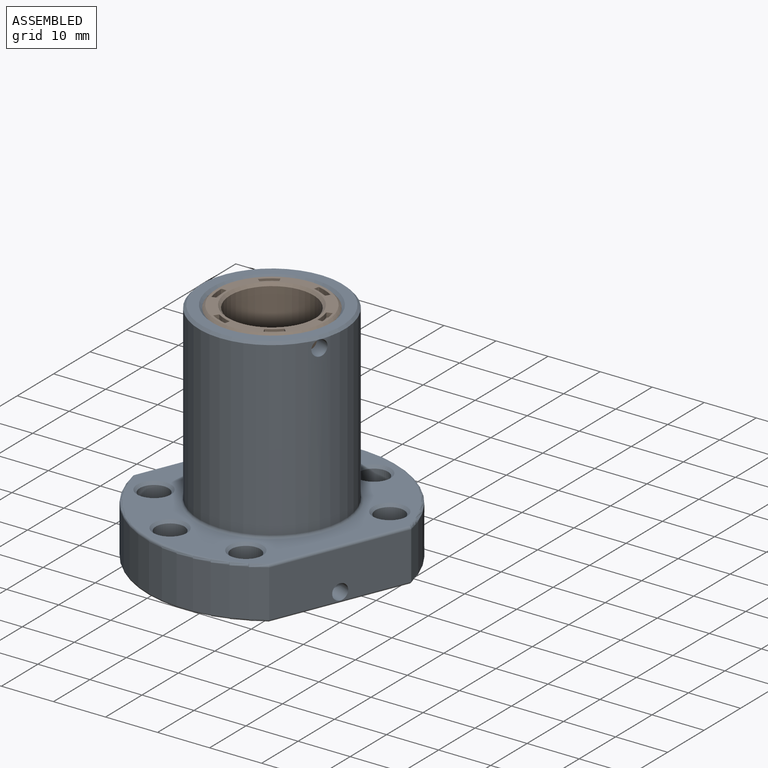
[diagram: assembled view]
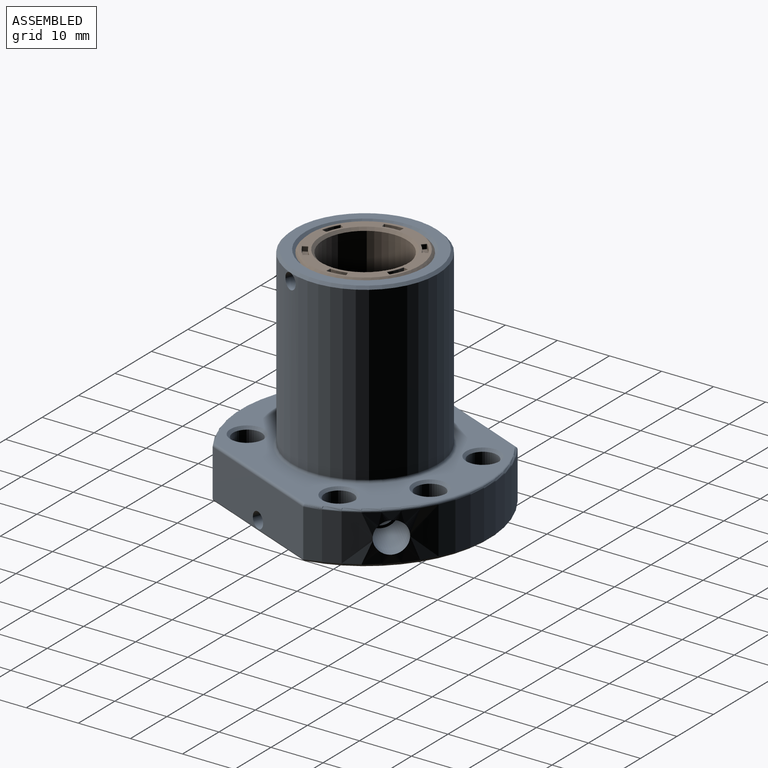
[diagram: assembled view, second angle]
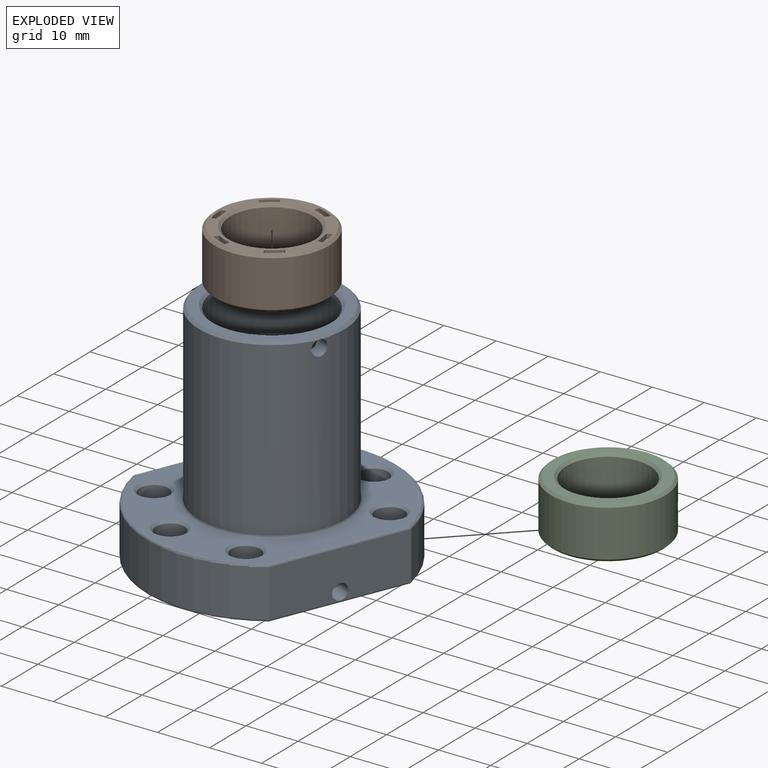
[diagram: exploded view]
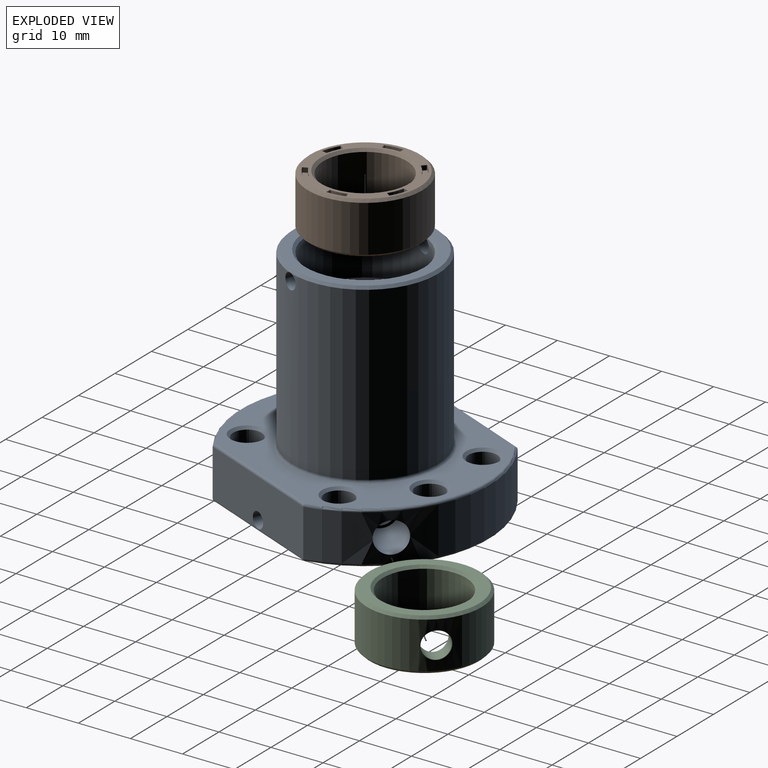
[diagram: exploded view, second angle]
ASSEMBLY  parts=3 mates=4
PART A: 53 faces, bbox 52.7x44x44.7 mm
  f0: plane 22.69x22.69mm, normal (0,0,-1), area 109.9mm2, adj f4,f11,f52
  f1: cylinder r=8mm len=23mm, axis (0,0,1), area 283.6mm2, adj f3,f4,f52
  f2: plane 22.7x22.7mm, normal (0,0,1), area 109.9mm2, adj f3,f12,f52
  f3: cone r=8mm half-angle=45deg, axis (0,0,1), area 9.3mm2, adj f1,f2,f52
  f4: cone r=8.5mm half-angle=45deg, axis (0,0,-1), area 9.3mm2, adj f0,f1,f52
  f5: cylinder r=2.5mm len=5.88mm, axis (0.92,0.38,0), area 51.6mm2, adj f12,f37
  f6: cylinder r=24mm len=40mm, axis (0,0,1), area 397.2mm2, adj f14,f15,f38,f41,f47
  f7: cylinder r=24mm len=40mm, axis (0,0,1), area 425.6mm2, adj f14,f15,f42,f44
  f8: plane 47x39mm, normal (0,0,-1), area 732.9mm2, adj f23,f24,f25,f26,f27,f28,f39,f40
  f9: cylinder r=14mm len=33mm, axis (0,0,1), area 2888.6mm2, adj f30,f39,f50,f51
  f10: plane 27x27mm, normal (0,0,-1), area 157.1mm2, adj f29,f30
  f11: cylinder r=11mm len=22mm, axis (0,0,1), area 642.5mm2, adj f0,f29,f50,f51
  f12: cylinder r=11mm len=22mm, axis (0,0,1), area 622.7mm2, adj f2,f5,f22,f48,f49
  f13: plane 47x39mm, normal (0,0,1), area 977.9mm2, adj f22,f31,f32,f33,f34,f35,f36,f44
  f14: plane 26.53x9mm, normal (0,-1,0), area 231.7mm2, adj f6,f7,f43,f45,f49
  f15: plane 26.53x9mm, normal (0,1,0), area 231.7mm2, adj f6,f7,f40,f46,f48
  f16: cylinder r=2.75mm len=9mm, axis (0,0,1), area 155.5mm2, adj f25,f31
  f17: cylinder r=2.75mm len=9mm, axis (0,0,1), area 155.5mm2, adj f26,f32
  f18: cylinder r=2.75mm len=9mm, axis (0,0,1), area 155.5mm2, adj f24,f36
  f19: cylinder r=2.75mm len=9mm, axis (0,0,1), area 155.5mm2, adj f27,f33
  f20: cylinder r=2.75mm len=9mm, axis (0,0,1), area 155.5mm2, adj f28,f34
  f21: cylinder r=2.75mm len=9mm, axis (0,0,1), area 155.5mm2, adj f23,f35
  f22: cone r=11mm half-angle=45deg, axis (0,0,1), area 50mm2, adj f12,f13
  f23: cone r=3.25mm half-angle=45deg, axis (0,0,-1), area 13.3mm2, adj f8,f21
  f24: cone r=3.25mm half-angle=45deg, axis (0,0,-1), area 13.3mm2, adj f8,f18
  f25: cone r=3.25mm half-angle=45deg, axis (0,0,-1), area 13.3mm2, adj f8,f16
  f26: cone r=3.25mm half-angle=45deg, axis (0,0,-1), area 13.3mm2, adj f8,f17
  f27: cone r=3.25mm half-angle=45deg, axis (0,0,-1), area 13.3mm2, adj f8,f19
  f28: cone r=3.25mm half-angle=45deg, axis (0,0,-1), area 13.3mm2, adj f8,f20
  f29: cone r=11.5mm half-angle=45deg, axis (0,0,-1), area 50mm2, adj f10,f11
  f30: cone r=14mm half-angle=45deg, axis (0,0,1), area 61.1mm2, adj f9,f10
  f31: cone r=2.75mm half-angle=45deg, axis (0,0,1), area 13.3mm2, adj f13,f16
  f32: cone r=2.75mm half-angle=45deg, axis (0,0,1), area 13.3mm2, adj f13,f17
  f33: cone r=2.75mm half-angle=45deg, axis (0,0,1), area 13.3mm2, adj f13,f19
  f34: cone r=2.75mm half-angle=45deg, axis (0,0,1), area 13.3mm2, adj f13,f20
  f35: cone r=2.75mm half-angle=45deg, axis (0,0,1), area 13.3mm2, adj f13,f21
  f36: cone r=2.75mm half-angle=45deg, axis (0,0,1), area 13.3mm2, adj f13,f18
  f37: plane 6x5.54mm, normal (0.92,0.38,0), area 8.6mm2, adj f5,f38
  f38: cylinder r=3mm len=11.36mm, axis (0.92,0.38,0), area 184.9mm2, adj f6,f37
  f39: torus R=14.5mm, axis (0,0,-1), area 70mm2, adj f8,f9
  f40: cylinder r=0.5mm len=26.53mm, axis (-1,0,0), area 20.7mm2, adj f8,f15,f41,f42
  f41: torus R=23.5mm, axis (0,0,-1), area 36.7mm2, adj f6,f8,f40,f43
  f42: torus R=23.5mm, axis (0,0,-1), area 36.7mm2, adj f7,f8,f40,f43
  f43: cylinder r=0.5mm len=26.53mm, axis (1,0,0), area 20.7mm2, adj f8,f14,f41,f42
  f44: torus R=23.5mm, axis (0,0,1), area 36.7mm2, adj f7,f13,f45,f46
  f45: cylinder r=0.5mm len=26.53mm, axis (1,0,0), area 20.7mm2, adj f13,f14,f44,f47
  f46: cylinder r=0.5mm len=26.53mm, axis (-1,0,0), area 20.7mm2, adj f13,f15,f44,f47
  f47: torus R=23.5mm, axis (0,0,1), area 36.7mm2, adj f6,f13,f45,f46
  f48: cylinder r=1.5mm len=9mm, axis (0,-1,0), area 84.8mm2, adj f12,f15
  f49: cylinder r=1.5mm len=9mm, axis (0,-1,0), area 84.8mm2, adj f12,f14
  f50: cylinder r=1.5mm len=3mm, axis (0,-1,0), area 28.3mm2, adj f9,f11
  f51: cylinder r=1.5mm len=3mm, axis (0,-1,0), area 28.3mm2, adj f9,f11
  f52: bspline ~32.75x19.8mm, area 1655.8mm2, adj f0,f1,f2,f3,f4
PART B: 158 faces, bbox 22x22x10 mm
  f0: plane 21x21mm, normal (0,0,1), area 94.3mm2, adj f6,f7,f15,f19,f20,f24,f25,f28
  f1: plane 21x21mm, normal (0,0,-1), area 119.4mm2, adj f4,f5
  f2: cylinder r=11mm len=22mm, axis (0,0,-1), area 622mm2, adj f5,f6
  f3: cylinder r=8mm len=16mm, axis (0,0,-1), area 452.4mm2, adj f4,f7
  f4: cone r=8.5mm half-angle=45deg, axis (0,0,-1), area 36.7mm2, adj f1,f3
  f5: cone r=11mm half-angle=45deg, axis (0,0,1), area 47.8mm2, adj f1,f2
  f6: cone r=10.5mm half-angle=45deg, axis (0,0,-1), area 47.8mm2, adj f0,f2
  f7: cone r=8mm half-angle=45deg, axis (0,0,1), area 36.7mm2, adj f0,f3
  f8: cylinder r=9mm len=2.93mm, axis (0,0,1), area 2.4mm2, adj f21,f26,f29,f32
  f9: plane 0.8x0.79mm, normal (0.98,0.17,0), area 0.6mm2, adj f13,f16,f20,f21
  f10: cylinder r=10mm len=3.27mm, axis (0,0,1), area 2.6mm2, adj f13,f17,f18,f19
  f11: plane 0.8x0.79mm, normal (-0.98,0.17,0), area 0.6mm2, adj f18,f27,f28,f32
  f12: plane 3.24x0.92mm, normal (0,0,1), area 2.5mm2, adj f16,f17,f26,f27
  f13: cylinder r=0.1mm len=0.8mm, axis (0,0,1), area 0.1mm2, adj f9,f10,f14,f15
  f14: sphere r=0.1mm, area 0mm2, adj f13,f16,f17
  f15: torus R=0.2mm, axis (0,0,1), area 0mm2, adj f0,f13,f19,f20
  f16: cylinder r=0.1mm len=0.81mm, axis (0.17,-0.98,0), area 0.1mm2, adj f9,f12,f14,f22
  f17: torus R=9.9mm, axis (0,0,1), area 0.5mm2, adj f10,f12,f14,f23
  f18: cylinder r=0.1mm len=0.8mm, axis (0,0,1), area 0.1mm2, adj f10,f11,f23,f24
  f19: torus R=10.1mm, axis (0,0,1), area 0.5mm2, adj f0,f10,f15,f24
  f20: cylinder r=0.1mm len=0.81mm, axis (-0.17,0.98,0), area 0.1mm2, adj f0,f9,f15,f25
  f21: cylinder r=0.1mm len=0.8mm, axis (0,0,1), area 0.1mm2, adj f8,f9,f22,f25
  f22: sphere r=0.1mm, area 0mm2, adj f16,f21,f26
  f23: sphere r=0.1mm, area 0mm2, adj f17,f18,f27
  f24: torus R=0.2mm, axis (0,0,1), area 0mm2, adj f0,f18,f19,f28
  f25: torus R=0.2mm, axis (0,0,1), area 0mm2, adj f0,f20,f21,f29
  f26: torus R=9.1mm, axis (0,0,1), area 0.5mm2, adj f8,f12,f22,f30
  f27: cylinder r=0.1mm len=0.81mm, axis (0.17,0.98,0), area 0.1mm2, adj f11,f12,f23,f30
  f28: cylinder r=0.1mm len=0.81mm, axis (-0.17,-0.98,0), area 0.1mm2, adj f0,f11,f24,f31
  f29: torus R=8.9mm, axis (0,0,1), area 0.5mm2, adj f0,f8,f25,f31
  f30: sphere r=0.1mm, area 0mm2, adj f26,f27,f32
  f31: torus R=0.2mm, axis (0,0,1), area 0mm2, adj f0,f28,f29,f32
  f32: cylinder r=0.1mm len=0.8mm, axis (0,0,1), area 0.1mm2, adj f8,f11,f30,f31
  f33: plane 0.8x0.75mm, normal (-0.34,0.94,0), area 0.6mm2, adj f47,f48,f50,f57
  f34: cylinder r=9mm len=2.54mm, axis (0,0,1), area 2.4mm2, adj f52,f53,f55,f57
  f35: plane 0.8x0.61mm, normal (0.64,-0.77,0), area 0.6mm2, adj f40,f42,f43,f53
  f36: cylinder r=10mm len=2.84mm, axis (0,0,1), area 2.6mm2, adj f41,f42,f45,f48
  f37: sphere r=0.1mm, area 0mm2, adj f40,f41,f42
  f38: plane 3.08x2.23mm, normal (0,0,1), area 2.5mm2, adj f40,f41,f50,f52
  f39: sphere r=0.1mm, area 0mm2, adj f40,f52,f53
  f40: cylinder r=0.1mm len=0.68mm, axis (-0.77,-0.64,0), area 0.1mm2, adj f35,f37,f38,f39
  f41: torus R=9.9mm, axis (0,0,1), area 0.5mm2, adj f36,f37,f38,f49
  f42: cylinder r=0.1mm len=0.8mm, axis (0,0,1), area 0.1mm2, adj f35,f36,f37,f44
  f43: cylinder r=0.1mm len=0.68mm, axis (0.77,0.64,0), area 0.1mm2, adj f0,f35,f44,f54
  f44: torus R=0.2mm, axis (0,0,1), area 0mm2, adj f0,f42,f43,f45
  f45: torus R=10.1mm, axis (0,0,1), area 0.5mm2, adj f0,f36,f44,f46
  f46: torus R=0.2mm, axis (0,0,1), area 0mm2, adj f0,f45,f47,f48
  f47: cylinder r=0.1mm len=0.79mm, axis (-0.94,-0.34,0), area 0.1mm2, adj f0,f33,f46,f56
  f48: cylinder r=0.1mm len=0.8mm, axis (0,0,1), area 0.1mm2, adj f33,f36,f46,f49
  f49: sphere r=0.1mm, area 0mm2, adj f41,f48,f50
  f50: cylinder r=0.1mm len=0.79mm, axis (0.94,0.34,0), area 0.1mm2, adj f33,f38,f49,f51
  f51: sphere r=0.1mm, area 0mm2, adj f50,f52,f57
  f52: torus R=9.1mm, axis (0,0,1), area 0.5mm2, adj f34,f38,f39,f51
  f53: cylinder r=0.1mm len=0.8mm, axis (0,0,1), area 0.1mm2, adj f34,f35,f39,f54
  f54: torus R=0.2mm, axis (0,0,1), area 0mm2, adj f0,f43,f53,f55
  f55: torus R=8.9mm, axis (0,0,1), area 0.5mm2, adj f0,f34,f54,f56
  f56: torus R=0.2mm, axis (0,0,1), area 0mm2, adj f0,f47,f55,f57
  f57: cylinder r=0.1mm len=0.8mm, axis (0,0,1), area 0.1mm2, adj f33,f34,f51,f56
  f58: plane 0.8x0.61mm, normal (0.64,0.77,0), area 0.6mm2, adj f72,f73,f75,f82
  f59: cylinder r=9mm len=2.54mm, axis (0,0,1), area 2.4mm2, adj f77,f78,f80,f82
  f60: plane 0.8x0.75mm, normal (-0.34,-0.94,0), area 0.6mm2, adj f65,f67,f68,f78
  f61: cylinder r=10mm len=2.84mm, axis (0,0,1), area 2.6mm2, adj f66,f67,f70,f73
  f62: sphere r=0.1mm, area 0mm2, adj f65,f66,f67
  f63: plane 3.08x2.23mm, normal (0,0,1), area 2.5mm2, adj f65,f66,f75,f77
  f64: sphere r=0.1mm, area 0mm2, adj f65,f77,f78
  f65: cylinder r=0.1mm len=0.79mm, axis (-0.94,0.34,0), area 0.1mm2, adj f60,f62,f63,f64
  f66: torus R=9.9mm, axis (0,0,1), area 0.5mm2, adj f61,f62,f63,f74
  f67: cylinder r=0.1mm len=0.8mm, axis (0,0,1), area 0.1mm2, adj f60,f61,f62,f69
  f68: cylinder r=0.1mm len=0.79mm, axis (0.94,-0.34,0), area 0.1mm2, adj f0,f60,f69,f79
  f69: torus R=0.2mm, axis (0,0,1), area 0mm2, adj f0,f67,f68,f70
  f70: torus R=10.1mm, axis (0,0,1), area 0.5mm2, adj f0,f61,f69,f71
  f71: torus R=0.2mm, axis (0,0,1), area 0mm2, adj f0,f70,f72,f73
  f72: cylinder r=0.1mm len=0.68mm, axis (-0.77,0.64,0), area 0.1mm2, adj f0,f58,f71,f81
  f73: cylinder r=0.1mm len=0.8mm, axis (0,0,1), area 0.1mm2, adj f58,f61,f71,f74
  f74: sphere r=0.1mm, area 0mm2, adj f66,f73,f75
  f75: cylinder r=0.1mm len=0.68mm, axis (0.77,-0.64,0), area 0.1mm2, adj f58,f63,f74,f76
  f76: sphere r=0.1mm, area 0mm2, adj f75,f77,f82
  f77: torus R=9.1mm, axis (0,0,1), area 0.5mm2, adj f59,f63,f64,f76
  f78: cylinder r=0.1mm len=0.8mm, axis (0,0,1), area 0.1mm2, adj f59,f60,f64,f79
  f79: torus R=0.2mm, axis (0,0,1), area 0mm2, adj f0,f68,f78,f80
  f80: torus R=8.9mm, axis (0,0,1), area 0.5mm2, adj f0,f59,f79,f81
  f81: torus R=0.2mm, axis (0,0,1), area 0mm2, adj f0,f72,f80,f82
  f82: cylinder r=0.1mm len=0.8mm, axis (0,0,1), area 0.1mm2, adj f58,f59,f76,f81
  f83: plane 0.8x0.79mm, normal (0.98,-0.17,0), area 0.6mm2, adj f97,f98,f100,f107
  f84: cylinder r=9mm len=2.93mm, axis (0,0,1), area 2.4mm2, adj f102,f103,f105,f107
  f85: plane 0.8x0.79mm, normal (-0.98,-0.17,0), area 0.6mm2, adj f90,f92,f93,f103
  f86: cylinder r=10mm len=3.27mm, axis (0,0,1), area 2.6mm2, adj f91,f92,f95,f98
  f87: sphere r=0.1mm, area 0mm2, adj f90,f91,f92
  f88: plane 3.24x0.92mm, normal (0,0,1), area 2.5mm2, adj f90,f91,f100,f102
  f89: sphere r=0.1mm, area 0mm2, adj f90,f102,f103
  f90: cylinder r=0.1mm len=0.81mm, axis (-0.17,0.98,0), area 0.1mm2, adj f85,f87,f88,f89
  f91: torus R=9.9mm, axis (0,0,1), area 0.5mm2, adj f86,f87,f88,f99
  f92: cylinder r=0.1mm len=0.8mm, axis (0,0,1), area 0.1mm2, adj f85,f86,f87,f94
  f93: cylinder r=0.1mm len=0.81mm, axis (0.17,-0.98,0), area 0.1mm2, adj f0,f85,f94,f104
  f94: torus R=0.2mm, axis (0,0,1), area 0mm2, adj f0,f92,f93,f95
  f95: torus R=10.1mm, axis (0,0,1), area 0.5mm2, adj f0,f86,f94,f96
  f96: torus R=0.2mm, axis (0,0,1), area 0mm2, adj f0,f95,f97,f98
  f97: cylinder r=0.1mm len=0.81mm, axis (0.17,0.98,0), area 0.1mm2, adj f0,f83,f96,f106
  f98: cylinder r=0.1mm len=0.8mm, axis (0,0,1), area 0.1mm2, adj f83,f86,f96,f99
  f99: sphere r=0.1mm, area 0mm2, adj f91,f98,f100
  f100: cylinder r=0.1mm len=0.81mm, axis (-0.17,-0.98,0), area 0.1mm2, adj f83,f88,f99,f101
  f101: sphere r=0.1mm, area 0mm2, adj f100,f102,f107
  f102: torus R=9.1mm, axis (0,0,1), area 0.5mm2, adj f84,f88,f89,f101
  f103: cylinder r=0.1mm len=0.8mm, axis (0,0,1), area 0.1mm2, adj f84,f85,f89,f104
  f104: torus R=0.2mm, axis (0,0,1), area 0mm2, adj f0,f93,f103,f105
  f105: torus R=8.9mm, axis (0,0,1), area 0.5mm2, adj f0,f84,f104,f106
  f106: torus R=0.2mm, axis (0,0,1), area 0mm2, adj f0,f97,f105,f107
  f107: cylinder r=0.1mm len=0.8mm, axis (0,0,1), area 0.1mm2, adj f83,f84,f101,f106
  f108: plane 0.8x0.75mm, normal (0.34,-0.94,0), area 0.6mm2, adj f122,f123,f125,f132
  f109: cylinder r=9mm len=2.54mm, axis (0,0,1), area 2.4mm2, adj f127,f128,f130,f132
  f110: plane 0.8x0.61mm, normal (-0.64,0.77,0), area 0.6mm2, adj f115,f117,f118,f128
  f111: cylinder r=10mm len=2.84mm, axis (0,0,1), area 2.6mm2, adj f116,f117,f120,f123
  f112: sphere r=0.1mm, area 0mm2, adj f115,f116,f117
  f113: plane 3.08x2.23mm, normal (0,0,1), area 2.5mm2, adj f115,f116,f125,f127
  f114: sphere r=0.1mm, area 0mm2, adj f115,f127,f128
  f115: cylinder r=0.1mm len=0.68mm, axis (0.77,0.64,0), area 0.1mm2, adj f110,f112,f113,f114
  f116: torus R=9.9mm, axis (0,0,1), area 0.5mm2, adj f111,f112,f113,f124
  f117: cylinder r=0.1mm len=0.8mm, axis (0,0,1), area 0.1mm2, adj f110,f111,f112,f119
  f118: cylinder r=0.1mm len=0.68mm, axis (-0.77,-0.64,0), area 0.1mm2, adj f0,f110,f119,f129
  f119: torus R=0.2mm, axis (0,0,1), area 0mm2, adj f0,f117,f118,f120
  f120: torus R=10.1mm, axis (0,0,1), area 0.5mm2, adj f0,f111,f119,f121
  f121: torus R=0.2mm, axis (0,0,1), area 0mm2, adj f0,f120,f122,f123
  f122: cylinder r=0.1mm len=0.79mm, axis (0.94,0.34,0), area 0.1mm2, adj f0,f108,f121,f131
  f123: cylinder r=0.1mm len=0.8mm, axis (0,0,1), area 0.1mm2, adj f108,f111,f121,f124
  f124: sphere r=0.1mm, area 0mm2, adj f116,f123,f125
  f125: cylinder r=0.1mm len=0.79mm, axis (-0.94,-0.34,0), area 0.1mm2, adj f108,f113,f124,f126
  f126: sphere r=0.1mm, area 0mm2, adj f125,f127,f132
  f127: torus R=9.1mm, axis (0,0,1), area 0.5mm2, adj f109,f113,f114,f126
  f128: cylinder r=0.1mm len=0.8mm, axis (0,0,1), area 0.1mm2, adj f109,f110,f114,f129
  f129: torus R=0.2mm, axis (0,0,1), area 0mm2, adj f0,f118,f128,f130
  f130: torus R=8.9mm, axis (0,0,1), area 0.5mm2, adj f0,f109,f129,f131
  f131: torus R=0.2mm, axis (0,0,1), area 0mm2, adj f0,f122,f130,f132
  f132: cylinder r=0.1mm len=0.8mm, axis (0,0,1), area 0.1mm2, adj f108,f109,f126,f131
  f133: plane 0.8x0.61mm, normal (-0.64,-0.77,0), area 0.6mm2, adj f147,f148,f150,f157
  f134: cylinder r=9mm len=2.54mm, axis (0,0,1), area 2.4mm2, adj f152,f153,f155,f157
  f135: plane 0.8x0.75mm, normal (0.34,0.94,0), area 0.6mm2, adj f140,f142,f143,f153
  f136: cylinder r=10mm len=2.84mm, axis (0,0,1), area 2.6mm2, adj f141,f142,f145,f148
  f137: sphere r=0.1mm, area 0mm2, adj f140,f141,f142
  f138: plane 3.08x2.23mm, normal (0,0,1), area 2.5mm2, adj f140,f141,f150,f152
  f139: sphere r=0.1mm, area 0mm2, adj f140,f152,f153
  f140: cylinder r=0.1mm len=0.79mm, axis (0.94,-0.34,0), area 0.1mm2, adj f135,f137,f138,f139
  f141: torus R=9.9mm, axis (0,0,1), area 0.5mm2, adj f136,f137,f138,f149
  f142: cylinder r=0.1mm len=0.8mm, axis (0,0,1), area 0.1mm2, adj f135,f136,f137,f144
  f143: cylinder r=0.1mm len=0.79mm, axis (-0.94,0.34,0), area 0.1mm2, adj f0,f135,f144,f154
  f144: torus R=0.2mm, axis (0,0,1), area 0mm2, adj f0,f142,f143,f145
  f145: torus R=10.1mm, axis (0,0,1), area 0.5mm2, adj f0,f136,f144,f146
  f146: torus R=0.2mm, axis (0,0,1), area 0mm2, adj f0,f145,f147,f148
  f147: cylinder r=0.1mm len=0.68mm, axis (0.77,-0.64,0), area 0.1mm2, adj f0,f133,f146,f156
  f148: cylinder r=0.1mm len=0.8mm, axis (0,0,1), area 0.1mm2, adj f133,f136,f146,f149
  f149: sphere r=0.1mm, area 0mm2, adj f141,f148,f150
  f150: cylinder r=0.1mm len=0.68mm, axis (-0.77,0.64,0), area 0.1mm2, adj f133,f138,f149,f151
  f151: sphere r=0.1mm, area 0mm2, adj f150,f152,f157
  f152: torus R=9.1mm, axis (0,0,1), area 0.5mm2, adj f134,f138,f139,f151
  f153: cylinder r=0.1mm len=0.8mm, axis (0,0,1), area 0.1mm2, adj f134,f135,f139,f154
  f154: torus R=0.2mm, axis (0,0,1), area 0mm2, adj f0,f143,f153,f155
  f155: torus R=8.9mm, axis (0,0,1), area 0.5mm2, adj f0,f134,f154,f156
  f156: torus R=0.2mm, axis (0,0,1), area 0mm2, adj f0,f147,f155,f157
  f157: cylinder r=0.1mm len=0.8mm, axis (0,0,1), area 0.1mm2, adj f133,f134,f151,f156
PART C: 161 faces, bbox 22x22x10 mm
  f0: plane 21x21mm, normal (0,0,1), area 94.3mm2, adj f6,f7,f15,f19,f20,f24,f25,f28
  f1: plane 21x21mm, normal (0,0,-1), area 119.4mm2, adj f4,f5
  f2: cylinder r=11mm len=22mm, axis (0,0,-1), area 600.5mm2, adj f5,f6,f160
  f3: cylinder r=8mm len=16mm, axis (0,0,-1), area 431.2mm2, adj f4,f7,f159
  f4: cone r=8.5mm half-angle=45deg, axis (0,0,-1), area 36.7mm2, adj f1,f3
  f5: cone r=11mm half-angle=45deg, axis (0,0,1), area 47.8mm2, adj f1,f2
  f6: cone r=10.5mm half-angle=45deg, axis (0,0,-1), area 47.8mm2, adj f0,f2
  f7: cone r=8mm half-angle=45deg, axis (0,0,1), area 36.7mm2, adj f0,f3
  f8: cylinder r=10mm len=3.27mm, axis (0,0,1), area 2.6mm2, adj f18,f27,f28,f32
  f9: plane 0.8x0.79mm, normal (-0.98,0.17,0), area 0.6mm2, adj f21,f26,f29,f32
  f10: cylinder r=9mm len=2.93mm, axis (0,0,1), area 2.4mm2, adj f13,f16,f20,f21
  f11: plane 0.8x0.79mm, normal (0.98,0.17,0), area 0.6mm2, adj f13,f17,f18,f19
  f12: plane 3.24x0.92mm, normal (0,0,1), area 2.5mm2, adj f16,f17,f26,f27
  f13: cylinder r=0.1mm len=0.8mm, axis (0,0,1), area 0.1mm2, adj f10,f11,f14,f15
  f14: sphere r=0.1mm, area 0mm2, adj f13,f16,f17
  f15: torus R=0.2mm, axis (0,0,1), area 0mm2, adj f0,f13,f19,f20
  f16: torus R=9.1mm, axis (0,0,1), area 0.5mm2, adj f10,f12,f14,f22
  f17: cylinder r=0.1mm len=0.81mm, axis (0.17,-0.98,0), area 0.1mm2, adj f11,f12,f14,f23
  f18: cylinder r=0.1mm len=0.8mm, axis (0,0,1), area 0.1mm2, adj f8,f11,f23,f24
  f19: cylinder r=0.1mm len=0.81mm, axis (-0.17,0.98,0), area 0.1mm2, adj f0,f11,f15,f24
  f20: torus R=8.9mm, axis (0,0,1), area 0.5mm2, adj f0,f10,f15,f25
  f21: cylinder r=0.1mm len=0.8mm, axis (0,0,1), area 0.1mm2, adj f9,f10,f22,f25
  f22: sphere r=0.1mm, area 0mm2, adj f16,f21,f26
  f23: sphere r=0.1mm, area 0mm2, adj f17,f18,f27
  f24: torus R=0.2mm, axis (0,0,1), area 0mm2, adj f0,f18,f19,f28
  f25: torus R=0.2mm, axis (0,0,1), area 0mm2, adj f0,f20,f21,f29
  f26: cylinder r=0.1mm len=0.81mm, axis (0.17,0.98,0), area 0.1mm2, adj f9,f12,f22,f30
  f27: torus R=9.9mm, axis (0,0,1), area 0.5mm2, adj f8,f12,f23,f30
  f28: torus R=10.1mm, axis (0,0,1), area 0.5mm2, adj f0,f8,f24,f31
  f29: cylinder r=0.1mm len=0.81mm, axis (-0.17,-0.98,0), area 0.1mm2, adj f0,f9,f25,f31
  f30: sphere r=0.1mm, area 0mm2, adj f26,f27,f32
  f31: torus R=0.2mm, axis (0,0,1), area 0mm2, adj f0,f28,f29,f32
  f32: cylinder r=0.1mm len=0.8mm, axis (0,0,1), area 0.1mm2, adj f8,f9,f30,f31
  f33: cylinder r=10mm len=2.84mm, axis (0,0,1), area 2.6mm2, adj f47,f48,f50,f57
  f34: plane 0.8x0.75mm, normal (-0.34,0.94,0), area 0.6mm2, adj f52,f53,f55,f57
  f35: cylinder r=9mm len=2.54mm, axis (0,0,1), area 2.4mm2, adj f40,f42,f43,f53
  f36: plane 0.8x0.61mm, normal (0.64,-0.77,0), area 0.6mm2, adj f41,f42,f45,f48
  f37: sphere r=0.1mm, area 0mm2, adj f40,f41,f42
  f38: plane 3.08x2.23mm, normal (0,0,1), area 2.5mm2, adj f40,f41,f50,f52
  f39: sphere r=0.1mm, area 0mm2, adj f40,f52,f53
  f40: torus R=9.1mm, axis (0,0,1), area 0.5mm2, adj f35,f37,f38,f39
  f41: cylinder r=0.1mm len=0.68mm, axis (-0.77,-0.64,0), area 0.1mm2, adj f36,f37,f38,f49
  f42: cylinder r=0.1mm len=0.8mm, axis (0,0,1), area 0.1mm2, adj f35,f36,f37,f44
  f43: torus R=8.9mm, axis (0,0,1), area 0.5mm2, adj f0,f35,f44,f54
  f44: torus R=0.2mm, axis (0,0,1), area 0mm2, adj f0,f42,f43,f45
  f45: cylinder r=0.1mm len=0.68mm, axis (0.77,0.64,0), area 0.1mm2, adj f0,f36,f44,f46
  f46: torus R=0.2mm, axis (0,0,1), area 0mm2, adj f0,f45,f47,f48
  f47: torus R=10.1mm, axis (0,0,1), area 0.5mm2, adj f0,f33,f46,f56
  f48: cylinder r=0.1mm len=0.8mm, axis (0,0,1), area 0.1mm2, adj f33,f36,f46,f49
  f49: sphere r=0.1mm, area 0mm2, adj f41,f48,f50
  f50: torus R=9.9mm, axis (0,0,1), area 0.5mm2, adj f33,f38,f49,f51
  f51: sphere r=0.1mm, area 0mm2, adj f50,f52,f57
  f52: cylinder r=0.1mm len=0.79mm, axis (0.94,0.34,0), area 0.1mm2, adj f34,f38,f39,f51
  f53: cylinder r=0.1mm len=0.8mm, axis (0,0,1), area 0.1mm2, adj f34,f35,f39,f54
  f54: torus R=0.2mm, axis (0,0,1), area 0mm2, adj f0,f43,f53,f55
  f55: cylinder r=0.1mm len=0.79mm, axis (-0.94,-0.34,0), area 0.1mm2, adj f0,f34,f54,f56
  f56: torus R=0.2mm, axis (0,0,1), area 0mm2, adj f0,f47,f55,f57
  f57: cylinder r=0.1mm len=0.8mm, axis (0,0,1), area 0.1mm2, adj f33,f34,f51,f56
  f58: cylinder r=10mm len=2.84mm, axis (0,0,1), area 2.6mm2, adj f72,f73,f75,f82
  f59: plane 0.8x0.61mm, normal (0.64,0.77,0), area 0.6mm2, adj f77,f78,f80,f82
  f60: cylinder r=9mm len=2.54mm, axis (0,0,1), area 2.4mm2, adj f65,f67,f68,f78
  f61: plane 0.8x0.75mm, normal (-0.34,-0.94,0), area 0.6mm2, adj f66,f67,f70,f73
  f62: sphere r=0.1mm, area 0mm2, adj f65,f66,f67
  f63: plane 3.08x2.23mm, normal (0,0,1), area 2.5mm2, adj f65,f66,f75,f77
  f64: sphere r=0.1mm, area 0mm2, adj f65,f77,f78
  f65: torus R=9.1mm, axis (0,0,1), area 0.5mm2, adj f60,f62,f63,f64
  f66: cylinder r=0.1mm len=0.79mm, axis (-0.94,0.34,0), area 0.1mm2, adj f61,f62,f63,f74
  f67: cylinder r=0.1mm len=0.8mm, axis (0,0,1), area 0.1mm2, adj f60,f61,f62,f69
  f68: torus R=8.9mm, axis (0,0,1), area 0.5mm2, adj f0,f60,f69,f79
  f69: torus R=0.2mm, axis (0,0,1), area 0mm2, adj f0,f67,f68,f70
  f70: cylinder r=0.1mm len=0.79mm, axis (0.94,-0.34,0), area 0.1mm2, adj f0,f61,f69,f71
  f71: torus R=0.2mm, axis (0,0,1), area 0mm2, adj f0,f70,f72,f73
  f72: torus R=10.1mm, axis (0,0,1), area 0.5mm2, adj f0,f58,f71,f81
  f73: cylinder r=0.1mm len=0.8mm, axis (0,0,1), area 0.1mm2, adj f58,f61,f71,f74
  f74: sphere r=0.1mm, area 0mm2, adj f66,f73,f75
  f75: torus R=9.9mm, axis (0,0,1), area 0.5mm2, adj f58,f63,f74,f76
  f76: sphere r=0.1mm, area 0mm2, adj f75,f77,f82
  f77: cylinder r=0.1mm len=0.68mm, axis (0.77,-0.64,0), area 0.1mm2, adj f59,f63,f64,f76
  f78: cylinder r=0.1mm len=0.8mm, axis (0,0,1), area 0.1mm2, adj f59,f60,f64,f79
  f79: torus R=0.2mm, axis (0,0,1), area 0mm2, adj f0,f68,f78,f80
  f80: cylinder r=0.1mm len=0.68mm, axis (-0.77,0.64,0), area 0.1mm2, adj f0,f59,f79,f81
  f81: torus R=0.2mm, axis (0,0,1), area 0mm2, adj f0,f72,f80,f82
  f82: cylinder r=0.1mm len=0.8mm, axis (0,0,1), area 0.1mm2, adj f58,f59,f76,f81
  f83: cylinder r=10mm len=3.27mm, axis (0,0,1), area 2.6mm2, adj f97,f98,f100,f107
  f84: plane 0.8x0.79mm, normal (0.98,-0.17,0), area 0.6mm2, adj f102,f103,f105,f107
  f85: cylinder r=9mm len=2.93mm, axis (0,0,1), area 2.4mm2, adj f90,f92,f93,f103
  f86: plane 0.8x0.79mm, normal (-0.98,-0.17,0), area 0.6mm2, adj f91,f92,f95,f98
  f87: sphere r=0.1mm, area 0mm2, adj f90,f91,f92
  f88: plane 3.24x0.92mm, normal (0,0,1), area 2.5mm2, adj f90,f91,f100,f102
  f89: sphere r=0.1mm, area 0mm2, adj f90,f102,f103
  f90: torus R=9.1mm, axis (0,0,1), area 0.5mm2, adj f85,f87,f88,f89
  f91: cylinder r=0.1mm len=0.81mm, axis (-0.17,0.98,0), area 0.1mm2, adj f86,f87,f88,f99
  f92: cylinder r=0.1mm len=0.8mm, axis (0,0,1), area 0.1mm2, adj f85,f86,f87,f94
  f93: torus R=8.9mm, axis (0,0,1), area 0.5mm2, adj f0,f85,f94,f104
  f94: torus R=0.2mm, axis (0,0,1), area 0mm2, adj f0,f92,f93,f95
  f95: cylinder r=0.1mm len=0.81mm, axis (0.17,-0.98,0), area 0.1mm2, adj f0,f86,f94,f96
  f96: torus R=0.2mm, axis (0,0,1), area 0mm2, adj f0,f95,f97,f98
  f97: torus R=10.1mm, axis (0,0,1), area 0.5mm2, adj f0,f83,f96,f106
  f98: cylinder r=0.1mm len=0.8mm, axis (0,0,1), area 0.1mm2, adj f83,f86,f96,f99
  f99: sphere r=0.1mm, area 0mm2, adj f91,f98,f100
  f100: torus R=9.9mm, axis (0,0,1), area 0.5mm2, adj f83,f88,f99,f101
  f101: sphere r=0.1mm, area 0mm2, adj f100,f102,f107
  f102: cylinder r=0.1mm len=0.81mm, axis (-0.17,-0.98,0), area 0.1mm2, adj f84,f88,f89,f101
  f103: cylinder r=0.1mm len=0.8mm, axis (0,0,1), area 0.1mm2, adj f84,f85,f89,f104
  f104: torus R=0.2mm, axis (0,0,1), area 0mm2, adj f0,f93,f103,f105
  f105: cylinder r=0.1mm len=0.81mm, axis (0.17,0.98,0), area 0.1mm2, adj f0,f84,f104,f106
  f106: torus R=0.2mm, axis (0,0,1), area 0mm2, adj f0,f97,f105,f107
  f107: cylinder r=0.1mm len=0.8mm, axis (0,0,1), area 0.1mm2, adj f83,f84,f101,f106
  f108: cylinder r=10mm len=2.84mm, axis (0,0,1), area 2.6mm2, adj f122,f123,f125,f132
  f109: plane 0.8x0.75mm, normal (0.34,-0.94,0), area 0.6mm2, adj f127,f128,f130,f132
  f110: cylinder r=9mm len=2.54mm, axis (0,0,1), area 2.4mm2, adj f115,f117,f118,f128
  f111: plane 0.8x0.61mm, normal (-0.64,0.77,0), area 0.6mm2, adj f116,f117,f120,f123
  f112: sphere r=0.1mm, area 0mm2, adj f115,f116,f117
  f113: plane 3.08x2.23mm, normal (0,0,1), area 2.5mm2, adj f115,f116,f125,f127
  f114: sphere r=0.1mm, area 0mm2, adj f115,f127,f128
  f115: torus R=9.1mm, axis (0,0,1), area 0.5mm2, adj f110,f112,f113,f114
  f116: cylinder r=0.1mm len=0.68mm, axis (0.77,0.64,0), area 0.1mm2, adj f111,f112,f113,f124
  f117: cylinder r=0.1mm len=0.8mm, axis (0,0,1), area 0.1mm2, adj f110,f111,f112,f119
  f118: torus R=8.9mm, axis (0,0,1), area 0.5mm2, adj f0,f110,f119,f129
  f119: torus R=0.2mm, axis (0,0,1), area 0mm2, adj f0,f117,f118,f120
  f120: cylinder r=0.1mm len=0.68mm, axis (-0.77,-0.64,0), area 0.1mm2, adj f0,f111,f119,f121
  f121: torus R=0.2mm, axis (0,0,1), area 0mm2, adj f0,f120,f122,f123
  f122: torus R=10.1mm, axis (0,0,1), area 0.5mm2, adj f0,f108,f121,f131
  f123: cylinder r=0.1mm len=0.8mm, axis (0,0,1), area 0.1mm2, adj f108,f111,f121,f124
  f124: sphere r=0.1mm, area 0mm2, adj f116,f123,f125
  f125: torus R=9.9mm, axis (0,0,1), area 0.5mm2, adj f108,f113,f124,f126
  f126: sphere r=0.1mm, area 0mm2, adj f125,f127,f132
  f127: cylinder r=0.1mm len=0.79mm, axis (-0.94,-0.34,0), area 0.1mm2, adj f109,f113,f114,f126
  f128: cylinder r=0.1mm len=0.8mm, axis (0,0,1), area 0.1mm2, adj f109,f110,f114,f129
  f129: torus R=0.2mm, axis (0,0,1), area 0mm2, adj f0,f118,f128,f130
  f130: cylinder r=0.1mm len=0.79mm, axis (0.94,0.34,0), area 0.1mm2, adj f0,f109,f129,f131
  f131: torus R=0.2mm, axis (0,0,1), area 0mm2, adj f0,f122,f130,f132
  f132: cylinder r=0.1mm len=0.8mm, axis (0,0,1), area 0.1mm2, adj f108,f109,f126,f131
  f133: cylinder r=10mm len=2.84mm, axis (0,0,1), area 2.6mm2, adj f147,f148,f150,f157
  f134: plane 0.8x0.61mm, normal (-0.64,-0.77,0), area 0.6mm2, adj f152,f153,f155,f157
  f135: cylinder r=9mm len=2.54mm, axis (0,0,1), area 2.4mm2, adj f140,f142,f143,f153
  f136: plane 0.8x0.75mm, normal (0.34,0.94,0), area 0.6mm2, adj f141,f142,f145,f148
  f137: sphere r=0.1mm, area 0mm2, adj f140,f141,f142
  f138: plane 3.08x2.23mm, normal (0,0,1), area 2.5mm2, adj f140,f141,f150,f152
  f139: sphere r=0.1mm, area 0mm2, adj f140,f152,f153
  f140: torus R=9.1mm, axis (0,0,1), area 0.5mm2, adj f135,f137,f138,f139
  f141: cylinder r=0.1mm len=0.79mm, axis (0.94,-0.34,0), area 0.1mm2, adj f136,f137,f138,f149
  f142: cylinder r=0.1mm len=0.8mm, axis (0,0,1), area 0.1mm2, adj f135,f136,f137,f144
  f143: torus R=8.9mm, axis (0,0,1), area 0.5mm2, adj f0,f135,f144,f154
  f144: torus R=0.2mm, axis (0,0,1), area 0mm2, adj f0,f142,f143,f145
  f145: cylinder r=0.1mm len=0.79mm, axis (-0.94,0.34,0), area 0.1mm2, adj f0,f136,f144,f146
  f146: torus R=0.2mm, axis (0,0,1), area 0mm2, adj f0,f145,f147,f148
  f147: torus R=10.1mm, axis (0,0,1), area 0.5mm2, adj f0,f133,f146,f156
  f148: cylinder r=0.1mm len=0.8mm, axis (0,0,1), area 0.1mm2, adj f133,f136,f146,f149
  f149: sphere r=0.1mm, area 0mm2, adj f141,f148,f150
  f150: torus R=9.9mm, axis (0,0,1), area 0.5mm2, adj f133,f138,f149,f151
  f151: sphere r=0.1mm, area 0mm2, adj f150,f152,f157
  f152: cylinder r=0.1mm len=0.68mm, axis (-0.77,0.64,0), area 0.1mm2, adj f134,f138,f139,f151
  f153: cylinder r=0.1mm len=0.8mm, axis (0,0,1), area 0.1mm2, adj f134,f135,f139,f154
  f154: torus R=0.2mm, axis (0,0,1), area 0mm2, adj f0,f143,f153,f155
  f155: cylinder r=0.1mm len=0.68mm, axis (0.77,-0.64,0), area 0.1mm2, adj f0,f134,f154,f156
  f156: torus R=0.2mm, axis (0,0,1), area 0mm2, adj f0,f147,f155,f157
  f157: cylinder r=0.1mm len=0.8mm, axis (0,0,1), area 0.1mm2, adj f133,f134,f151,f156
  f158: cylinder r=2.5mm len=5mm, axis (1,0,0), area 44.9mm2, adj f159,f160
  f159: bspline ~5.21x5.14mm, area 2.3mm2, adj f3,f158
  f160: bspline ~5.26x5.2mm, area 2.7mm2, adj f2,f158
PLACE A rot(axis=(-0.83,-0.56,0),180deg) t=(39,31.38,14.6)mm fixed
PLACE B rot(axis=(0,0,-1),22.5deg) t=(39,31.38,48.6)mm
PLACE C rot(axis=(-0.38,0.92,0),180deg) t=(39,31.38,24.6)mm
MATE cylindrical C.f158 <-> A.f38  axis (-0.71,-0.71,0) through (45.56,37.95,19.6)mm
MATE cylindrical A.f3 <-> C.f2  axis (0,0,-1) through (39,31.38,19.85)mm
MATE cylindrical A.f29 <-> B.f2  axis (0,0,-1) through (39,31.38,53.35)mm
MATE planar B.f2 <-> A.f29  axis (0,0,1) through (39,31.38,58.6)mm
